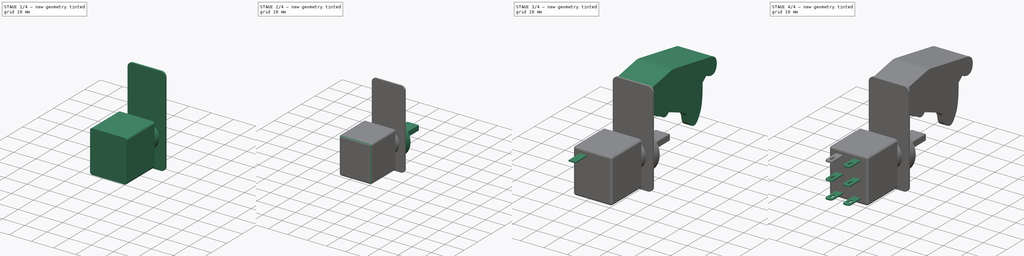
[diagram: build sequence overview — one tinted view per stage of 4, left to right]
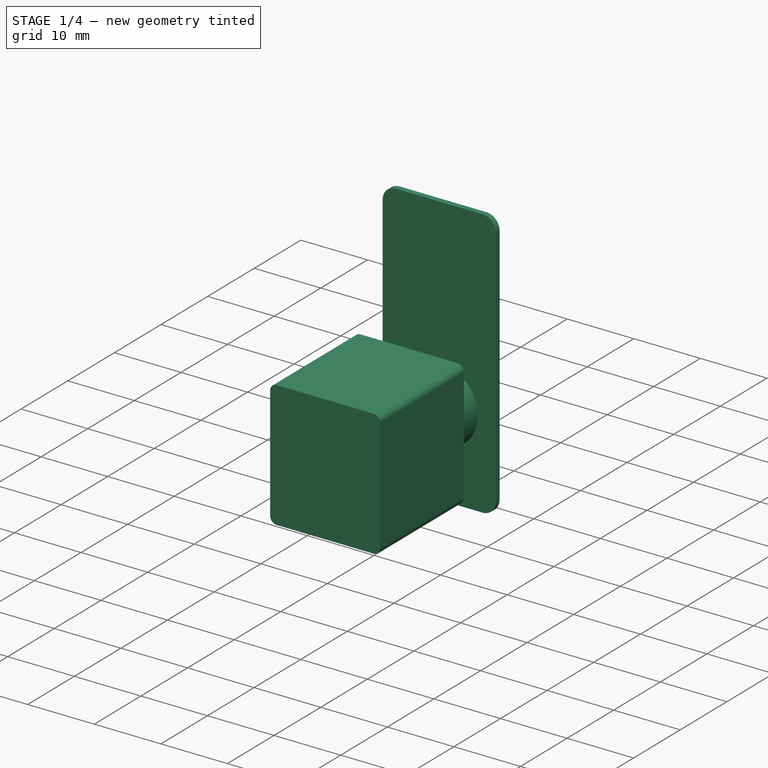
[diagram: stage 1 of 4 — iso view after this stage's code; geometry added in this stage tinted green]
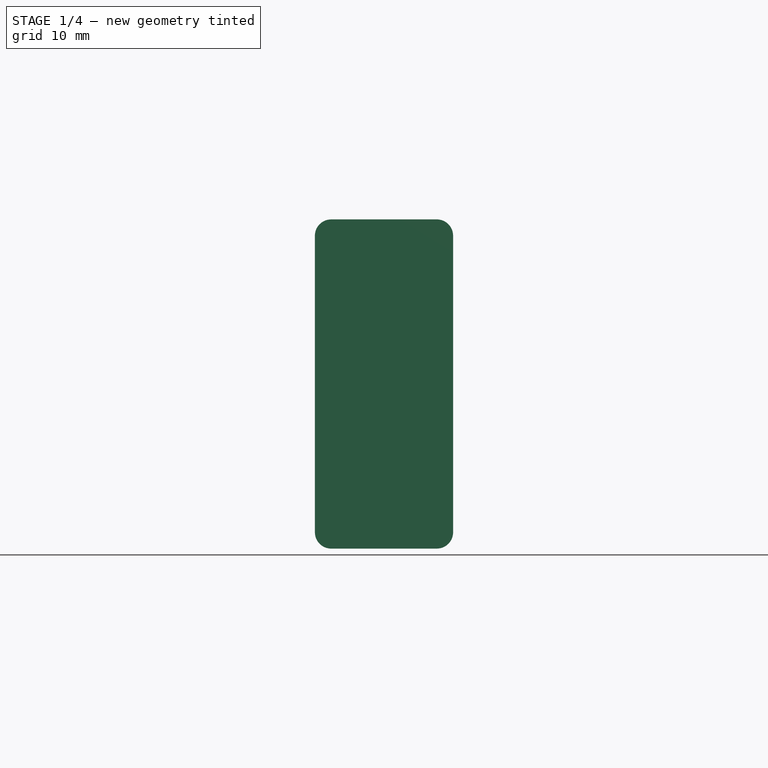
[diagram: stage 1 of 4 — front view after this stage's code; geometry added in this stage tinted green]
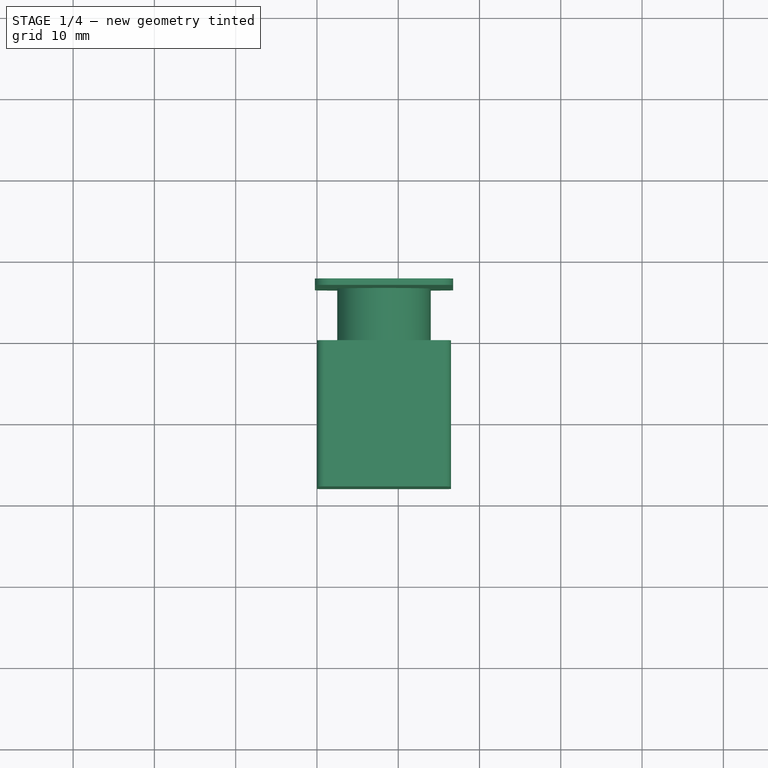
[diagram: stage 1 of 4 — top view after this stage's code; geometry added in this stage tinted green]
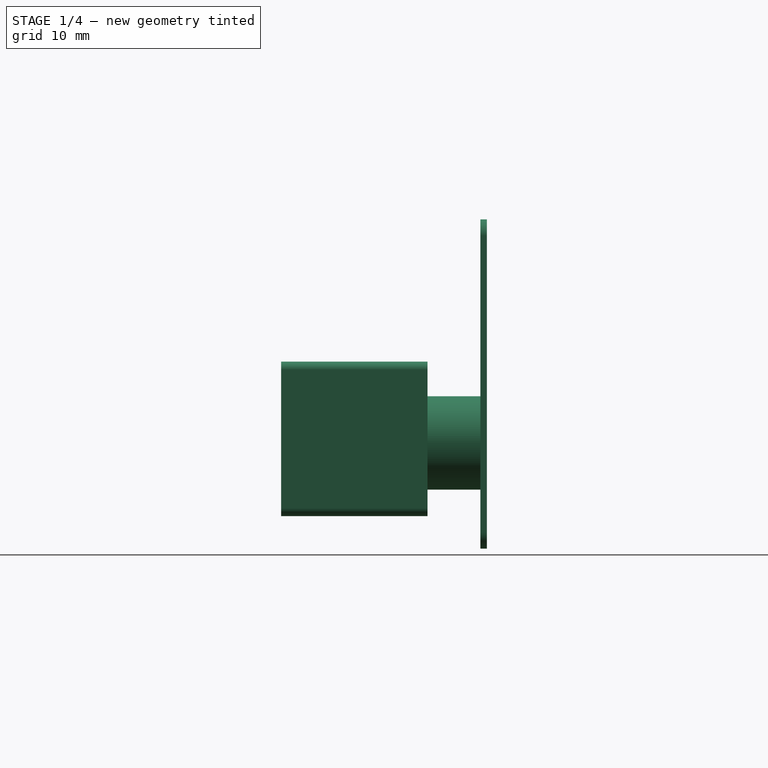
[diagram: stage 1 of 4 — right view after this stage's code; geometry added in this stage tinted green]
FCSTD DOCUMENT  (FreeCAD 1.0R39285 (Git))
Label: PreSwitch
License: All rights reserved
LicenseURL: https://en.wikipedia.org/wiki/All_rights_reserved
objects: Sketcher::SketchObject×9, PartDesign::Pad×7, PartDesign::Fillet×2, PartDesign::Pocket×2, PartDesign::LinearPattern×2, PartDesign::MultiTransform×1, PartDesign::Body×1
note: 58 computed .brp shape members not serialized (recipe doc carries the construction recipe); baked Part::Feature solids carry a one-line shape summary decoded from their .brp

FEATURE [Sketcher::SketchObject] Sketch
  ArcFitTolerance = 1e-06
  AttachmentSupport = -> [XZ_Plane]
  FullyConstrained = true
  MakeInternals = false
  MapMode = 5
  Placement = pos=(0,0,0) rot=(1,0,0;1.5708rad)
  sketch-geometry (12):
    g0: LineSegment StartX=1 StartY=0 StartZ=0 EndX=15.5 EndY=0 EndZ=0
    g1: LineSegment StartX=16.5 StartY=1 StartZ=0 EndX=16.5 EndY=18 EndZ=0
    g2: LineSegment StartX=15.5 StartY=19 StartZ=0 EndX=1 EndY=19 EndZ=0
    g3: LineSegment StartX=4e-16 StartY=18 StartZ=0 EndX=4e-16 EndY=1 EndZ=0
    g4: ArcOfCircle CenterX=1 CenterY=18 CenterZ=0 NormalX=0 NormalY=0 NormalZ=1 AngleXU=0 Radius=1 StartAngle=1.5708 EndAngle=3.14159
    g5: GeomPoint [constr] X=0 Y=19 Z=0
    g6: ArcOfCircle CenterX=15.5 CenterY=18 CenterZ=0 NormalX=0 NormalY=0 NormalZ=1 AngleXU=0 Radius=1 StartAngle=6.6e-15 EndAngle=1.5708
    g7: GeomPoint [constr] X=16.5 Y=19 Z=0
    g8: ArcOfCircle CenterX=15.5 CenterY=1 CenterZ=0 NormalX=0 NormalY=0 NormalZ=1 AngleXU=0 Radius=1 StartAngle=4.71239 EndAngle=6.28319
    g9: GeomPoint [constr] X=16.5 Y=0 Z=0
    g10: ArcOfCircle CenterX=1 CenterY=1 CenterZ=0 NormalX=0 NormalY=0 NormalZ=1 AngleXU=0 Radius=1 StartAngle=3.14159 EndAngle=4.71239
    g11: GeomPoint [constr] X=0 Y=0 Z=0
  constraints (27):
    c: Horizontal(g0)
    c: Horizontal(g2)
    c: Vertical(g1)
    c: Vertical(g3)
    c: Distance(g9,g11) = 16.5
    c: Distance(g11,g5) = 19
    c: Coincident(g11,g-1)
    c: PointOnObject(g5,g2)
    c: PointOnObject(g5,g3)
    c: Tangent(g2,g4) = -1.5708
    c: Tangent(g3,g4) = -1.5708
    c: PointOnObject(g7,g1)
    c: PointOnObject(g7,g2)
    c: Tangent(g1,g6) = -1.5708
    c: Tangent(g2,g6) = -1.5708
    c: PointOnObject(g9,g0)
    c: PointOnObject(g9,g1)
    c: Tangent(g0,g8) = -1.5708
    c: Tangent(g1,g8) = -1.5708
    c: PointOnObject(g11,g0)
    c: PointOnObject(g11,g3)
    c: Tangent(g0,g10) = -1.5708
    c: Tangent(g3,g10) = -1.5708
    c: Equal(g10,g8)
    c: Equal(g8,g6)
    c: Equal(g6,g4)
    c: Diameter(g10) = 2
FEATURE [PartDesign::Pad] Pad
  Direction = (0,-1,2e-16)
  Length = 18
  Length2 = 10
  Placement = pos=(0,0,0) rot=(1,0,0;1.5708rad)
  Profile = -> Sketch
  ReferenceAxis = -> Sketch [N_Axis]
  Refine = true
  Suppressed = false
  Type = 0
FEATURE [Sketcher::SketchObject] Sketch001
  ArcFitTolerance = 1e-06
  AttachmentSupport = -> [Pad]
  ExternalGeometry = -> [Pad]
  FullyConstrained = true
  MakeInternals = false
  MapMode = 5
  Placement = pos=(0,2.1e-15,0) rot=(-1,0,0;1.5708rad)
  sketch-geometry (1):
    g0: Circle CenterX=8.25 CenterY=-9 CenterZ=0 NormalX=0 NormalY=0 NormalZ=1 AngleXU=0 Radius=5.75
  constraints (2):
    c: Diameter(g0) = 11.5
    c: Symmetric(g-1,g-3,g0)
FEATURE [PartDesign::Pad] Pad001
  BaseFeature = -> Pad
  Direction = (0,1,2e-16)
  Length = 6.5
  Length2 = 10
  Placement = pos=(0,0,0) rot=(1,0,0;1.5708rad)
  Profile = -> Sketch001
  ReferenceAxis = -> Sketch001 [N_Axis]
  Refine = true
  Suppressed = false
  Type = 0
FEATURE [Sketcher::SketchObject] Sketch002
  ArcFitTolerance = 1e-06
  AttachmentSupport = -> [Pad001]
  ExternalGeometry = -> [Pad001]
  FullyConstrained = true
  MakeInternals = false
  MapMode = 5
  Placement = pos=(0,6.5,0) rot=(-1,0,0;1.5708rad)
  sketch-geometry (15):
    g0: LineSegment StartX=-0.25 StartY=2 StartZ=0 EndX=-0.25 EndY=-34.5 EndZ=0
    g1: LineSegment StartX=1.75 StartY=-36.5 StartZ=0 EndX=14.75 EndY=-36.5 EndZ=0
    g2: LineSegment StartX=16.75 StartY=-34.5 StartZ=0 EndX=16.75 EndY=2 EndZ=0
    g3: LineSegment StartX=14.75 StartY=4 StartZ=0 EndX=1.75 EndY=4 EndZ=0
    g4: GeomPoint X=8.25 Y=-0.5 Z=0
    g5: GeomPoint X=-0.25 Y=-1 Z=0
    g6: GeomPoint X=16.75 Y=0 Z=0
    g7: ArcOfCircle CenterX=1.75 CenterY=2 CenterZ=0 NormalX=0 NormalY=0 NormalZ=1 AngleXU=0 Radius=2 StartAngle=1.5708 EndAngle=3.14159
    g8: GeomPoint [constr] X=-0.25 Y=4 Z=0
    g9: ArcOfCircle CenterX=14.75 CenterY=2 CenterZ=0 NormalX=0 NormalY=0 NormalZ=1 AngleXU=0 Radius=2 StartAngle=0 EndAngle=1.5708
    g10: GeomPoint [constr] X=16.75 Y=4 Z=0
    g11: ArcOfCircle CenterX=14.75 CenterY=-34.5 CenterZ=0 NormalX=0 NormalY=0 NormalZ=1 AngleXU=0 Radius=2 StartAngle=4.71239 EndAngle=6.28319
    g12: GeomPoint [constr] X=16.75 Y=-36.5 Z=0
    g13: ArcOfCircle CenterX=1.75 CenterY=-34.5 CenterZ=0 NormalX=0 NormalY=0 NormalZ=1 AngleXU=0 Radius=2 StartAngle=3.14159 EndAngle=4.71239
    g14: GeomPoint [constr] X=-0.25 Y=-36.5 Z=0
  constraints (32):
    c: Vertical(g0)
    c: Vertical(g2)
    c: Horizontal(g1)
    c: Horizontal(g3)
    c: Distance(g8,g10) = 17
    c: Distance(g14,g8) = 40.5
    c: DistanceY(g-1,g8) = 4
    c: PointOnObject(g5,g0)
    c: PointOnObject(g6,g2)
    c: PointOnObject(g6,g-1)
    c: Symmetric(g5,g6,g4)
    c: Symmetric(g-1,g-3,g4)
    c: PointOnObject(g8,g0)
    c: PointOnObject(g8,g3)
    c: Tangent(g0,g7) = -1.5708
    c: Tangent(g3,g7) = -1.5708
    c: PointOnObject(g10,g2)
    c: PointOnObject(g10,g3)
    c: Tangent(g2,g9) = -1.5708
    c: Tangent(g3,g9) = -1.5708
    c: PointOnObject(g12,g1)
    c: PointOnObject(g12,g2)
    c: Tangent(g1,g11) = -1.5708
    c: Tangent(g2,g11) = -1.5708
    c: PointOnObject(g14,g0)
    c: PointOnObject(g14,g1)
    c: Tangent(g0,g13) = -1.5708
    c: Tangent(g1,g13) = -1.5708
    c: Equal(g13,g11)
    c: Equal(g11,g7)
    c: Equal(g7,g9)
    c: Diameter(g7) = 4
FEATURE [PartDesign::Pad] Pad002
  BaseFeature = -> Pad001
  Direction = (0,1,2e-16)
  Length = 0.8
  Length2 = 10
  Placement = pos=(0,0,0) rot=(1,0,0;1.5708rad)
  Profile = -> Sketch002
  ReferenceAxis = -> Sketch002 [N_Axis]
  Refine = true
  Suppressed = false
  Type = 0
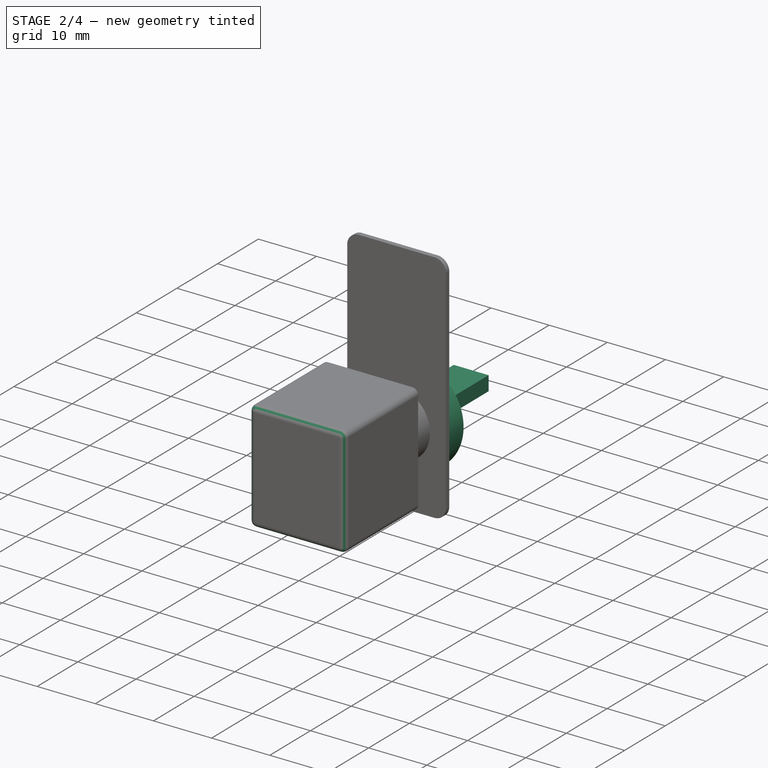
[diagram: stage 2 of 4 — iso view after this stage's code; geometry added in this stage tinted green]
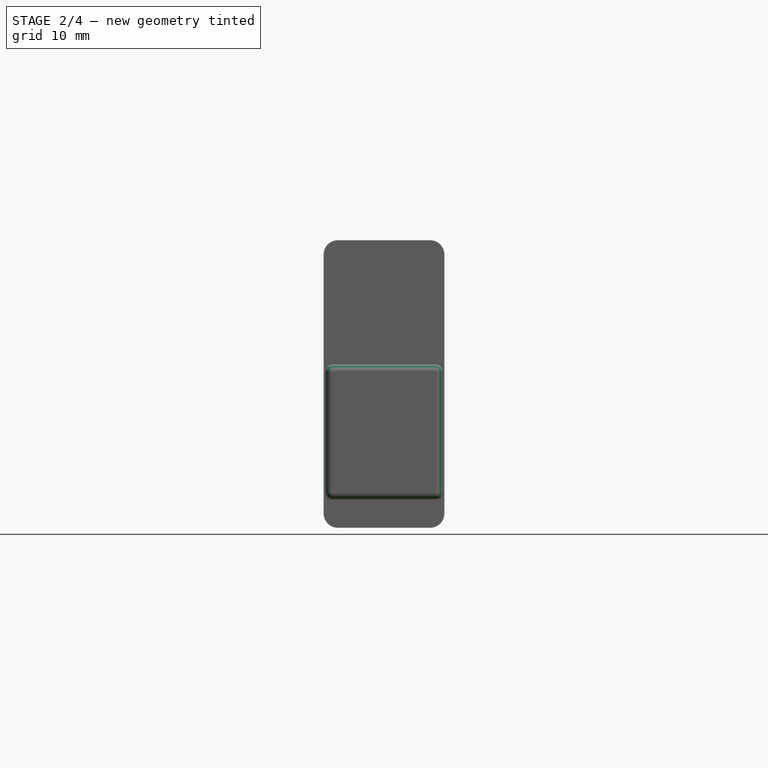
[diagram: stage 2 of 4 — front view after this stage's code; geometry added in this stage tinted green]
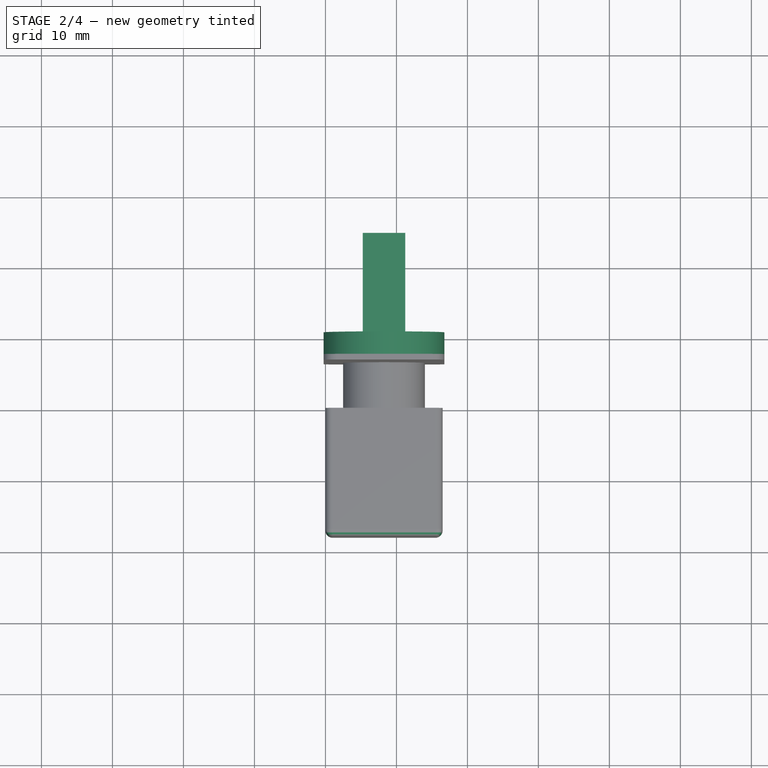
[diagram: stage 2 of 4 — top view after this stage's code; geometry added in this stage tinted green]
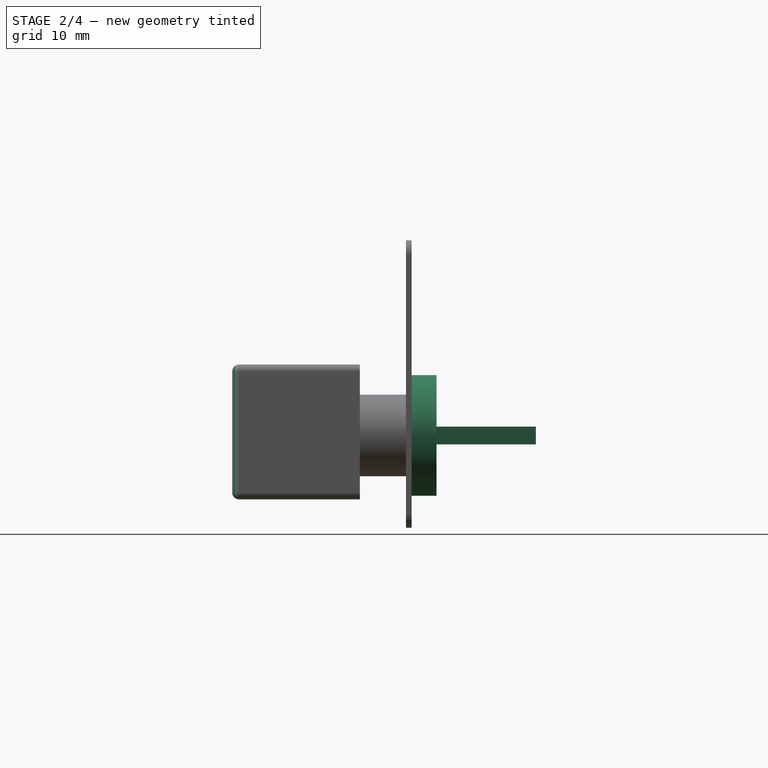
[diagram: stage 2 of 4 — right view after this stage's code; geometry added in this stage tinted green]
FEATURE [PartDesign::Fillet] Fillet
  Base = -> Pad002 [Edge17,Edge19,Edge21,Edge4]
  BaseFeature = -> Pad002
  Placement = pos=(0,0,0) rot=(1,0,0;1.5708rad)
  Radius = 1
  Refine = true
  SupportTransform = false
  Suppressed = false
  UseAllEdges = false
FEATURE [Sketcher::SketchObject] Sketch003
  ArcFitTolerance = 1e-06
  AttachmentSupport = -> [Fillet]
  ExternalGeometry = -> [Fillet]
  FullyConstrained = false
  MakeInternals = false
  MapMode = 5
  Placement = pos=(0,7.3,0) rot=(-1,0,0;1.5708rad)
  sketch-geometry (2):
    g0: GeomPoint X=8.25 Y=-9 Z=0
    g1: Circle CenterX=8.25 CenterY=-9 CenterZ=0 NormalX=0 NormalY=0 NormalZ=1 AngleXU=0 Radius=8.5
  constraints (2):
    c: Diameter(g1) = 17
    c: Coincident(g1,g0)
FEATURE [PartDesign::Pad] Pad003
  BaseFeature = -> Fillet
  Direction = (0,1,2e-16)
  Length = 3.5
  Length2 = 10
  Placement = pos=(0,0,0) rot=(1,0,0;1.5708rad)
  Profile = -> Sketch003
  ReferenceAxis = -> Sketch003 [N_Axis]
  Refine = true
  Suppressed = false
  Type = 0
FEATURE [Sketcher::SketchObject] Sketch004
  ArcFitTolerance = 1e-06
  AttachmentSupport = -> [Pad003]
  ExternalGeometry = -> [Pad003]
  FullyConstrained = true
  MakeInternals = false
  MapMode = 5
  Placement = pos=(0,10.8,2.6e-15) rot=(-1,0,0;1.5708rad)
  sketch-geometry (4):
    g0: LineSegment StartX=5.25 StartY=-7.75 StartZ=0 EndX=5.25 EndY=-10.25 EndZ=0
    g1: LineSegment StartX=5.25 StartY=-10.25 StartZ=0 EndX=11.25 EndY=-10.25 EndZ=0
    g2: LineSegment StartX=11.25 StartY=-10.25 StartZ=0 EndX=11.25 EndY=-7.75 EndZ=0
    g3: LineSegment StartX=11.25 StartY=-7.75 StartZ=0 EndX=5.25 EndY=-7.75 EndZ=0
  constraints (11):
    c: Coincident(g0,g1)
    c: Coincident(g1,g2)
    c: Coincident(g2,g3)
    c: Coincident(g3,g0)
    c: Vertical(g0)
    c: Vertical(g2)
    c: Horizontal(g1)
    c: Horizontal(g3)
    c: Distance(g0,g2) = 6
    c: Distance(g1,g3) = 2.5
    c: Symmetric(g0,g1,g-3)
FEATURE [PartDesign::Pad] Pad004
  BaseFeature = -> Pad003
  Direction = (0,1,2e-16)
  Length = 14
  Length2 = 10
  Placement = pos=(0,0,0) rot=(1,0,0;1.5708rad)
  Profile = -> Sketch004
  ReferenceAxis = -> Sketch004 [N_Axis]
  Refine = true
  Suppressed = false
  Type = 0
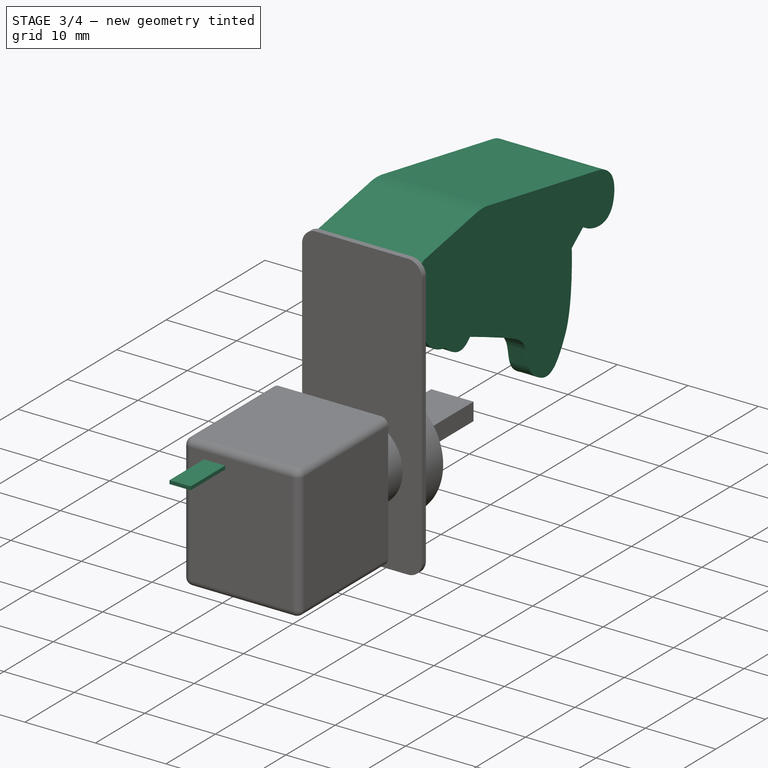
[diagram: stage 3 of 4 — iso view after this stage's code; geometry added in this stage tinted green]
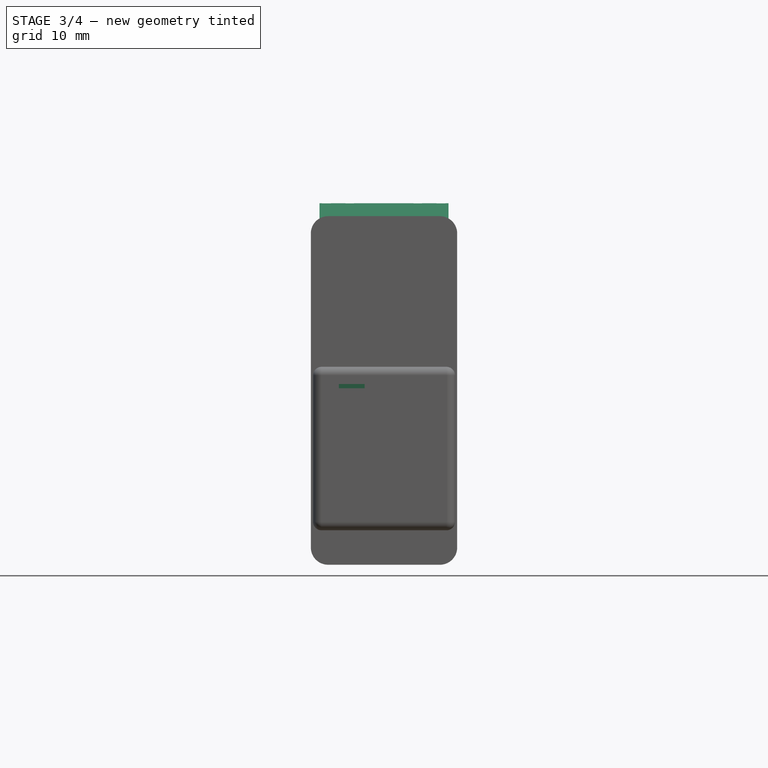
[diagram: stage 3 of 4 — front view after this stage's code; geometry added in this stage tinted green]
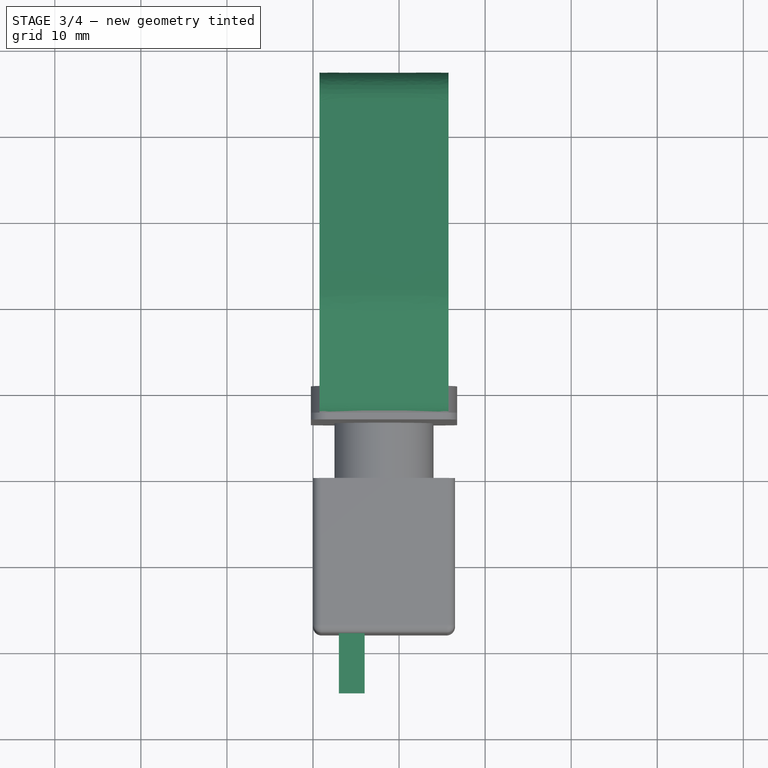
[diagram: stage 3 of 4 — top view after this stage's code; geometry added in this stage tinted green]
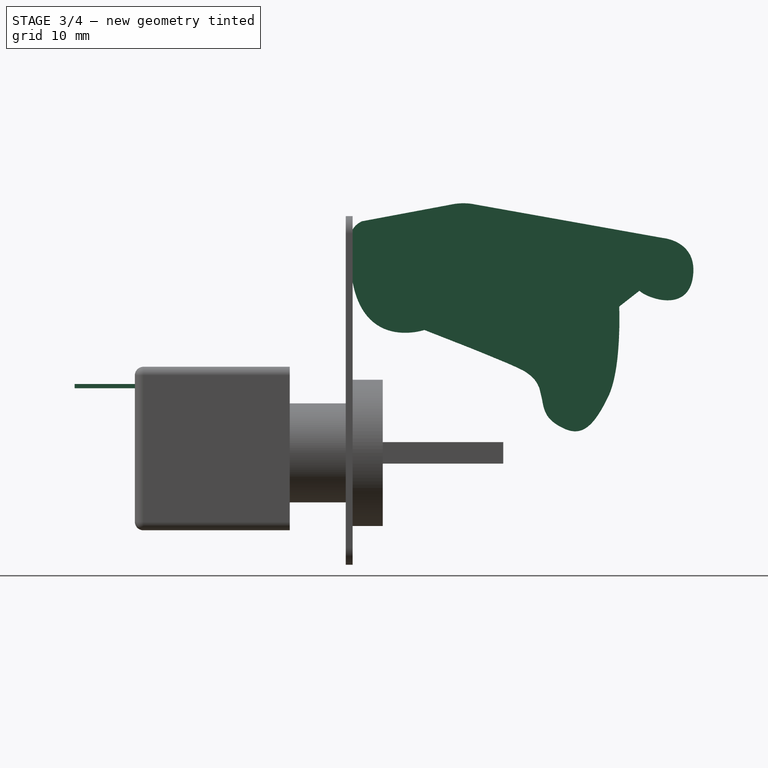
[diagram: stage 3 of 4 — right view after this stage's code; geometry added in this stage tinted green]
FEATURE [Sketcher::SketchObject] Sketch005
  ArcFitTolerance = 1e-06
  FullyConstrained = false
  MakeInternals = false
  Placement = pos=(15.75,7,38) rot=(0.57735,0.57735,0.57735;2.0944rad)
  sketch-geometry (14):
    g0: BSplineCurve PolesCount=2 KnotsCount=2 Degree=1 IsPeriodic=0
    g1: BSplineCurve PolesCount=4 KnotsCount=2 Degree=3 IsPeriodic=0
    g2: BSplineCurve PolesCount=4 KnotsCount=2 Degree=3 IsPeriodic=0
    g3: BSplineCurve PolesCount=4 KnotsCount=2 Degree=3 IsPeriodic=0
    g4: BSplineCurve PolesCount=4 KnotsCount=2 Degree=3 IsPeriodic=0
    g5: BSplineCurve PolesCount=2 KnotsCount=2 Degree=1 IsPeriodic=0
    g6: BSplineCurve PolesCount=4 KnotsCount=2 Degree=3 IsPeriodic=0
    g7: BSplineCurve PolesCount=4 KnotsCount=2 Degree=3 IsPeriodic=0
    g8: BSplineCurve PolesCount=4 KnotsCount=2 Degree=3 IsPeriodic=0
    g9: BSplineCurve PolesCount=4 KnotsCount=2 Degree=3 IsPeriodic=0
    g10: BSplineCurve PolesCount=4 KnotsCount=2 Degree=3 IsPeriodic=0
    g11: BSplineCurve PolesCount=4 KnotsCount=2 Degree=3 IsPeriodic=0
    g12: BSplineCurve PolesCount=2 KnotsCount=2 Degree=1 IsPeriodic=0
    g13: BSplineCurve PolesCount=4 KnotsCount=2 Degree=3 IsPeriodic=0
  constraints (14):
    c: Coincident(g0,g1)
    c: Coincident(g1,g2)
    c: Coincident(g2,g3)
    c: Coincident(g3,g4)
    c: Coincident(g4,g5)
    c: Coincident(g5,g6)
    c: Coincident(g6,g7)
    c: Coincident(g7,g8)
    c: Coincident(g8,g9)
    c: Coincident(g9,g10)
    c: Coincident(g10,g11)
    c: Coincident(g11,g12)
    c: Coincident(g12,g13)
    c: Coincident(g13,g0)
FEATURE [PartDesign::Pad] Pad005
  BaseFeature = -> Pad004
  Direction = (1,-3e-16,3e-16)
  Length = 15
  Length2 = 10
  Placement = pos=(0,0,0) rot=(1,0,0;1.5708rad)
  Profile = -> Sketch005
  ReferenceAxis = -> Sketch005 [N_Axis]
  Refine = true
  Reversed = true
  Suppressed = false
  Type = 0
FEATURE [Sketcher::SketchObject] Sketch006
  ArcFitTolerance = 1e-06
  AttachmentOffset = pos=(0,0,11) rot=(0,0,1;0rad)
  AttachmentSupport = -> [XY_Plane]
  ExternalGeometry = -> [Pad005]
  FullyConstrained = true
  MakeInternals = false
  MapMode = 5
  Placement = pos=(0,0,11) rot=(0,0,1;0rad)
  sketch-geometry (7):
    g0: LineSegment StartX=13 StartY=15.6392 StartZ=0 EndX=13 EndY=40.6392 EndZ=0
    g1: LineSegment StartX=13 StartY=40.6392 StartZ=0 EndX=3.5 EndY=40.6392 EndZ=0
    g2: LineSegment StartX=3.5 StartY=40.6392 StartZ=0 EndX=3.5 EndY=15.6392 EndZ=0
    g3: LineSegment StartX=3.5 StartY=15.6392 StartZ=0 EndX=13 EndY=15.6392 EndZ=0
    g4: LineSegment [constr] StartX=15.75 StartY=15.6392 StartZ=0 EndX=0.75 EndY=15.6392 EndZ=0
    g5: GeomPoint [constr] X=8.25 Y=15.6392 Z=0
    g6: GeomPoint [constr] X=8.25 Y=15.6392 Z=0
  constraints (15):
    c: Coincident(g0,g1)
    c: Coincident(g1,g2)
    c: Coincident(g2,g3)
    c: Coincident(g3,g0)
    c: Vertical(g0)
    c: Vertical(g2)
    c: Horizontal(g1)
    c: Horizontal(g3)
    c: Distance(g0,g2) = 9.5
    c: Distance(g1,g3) = 25
    c: Coincident(g4,g-3)
    c: Coincident(g4,g-4)
    c: Symmetric(g3,g3,g5)
    c: Symmetric(g4,g4,g6)
    c: Coincident(g5,g6)
FEATURE [PartDesign::Pocket] Pocket
  BaseFeature = -> Pad005
  Direction = (0,0,-1)
  Length = 20
  Length2 = 5
  Placement = pos=(0,0,0) rot=(1,0,0;1.5708rad)
  Profile = -> Sketch006
  ReferenceAxis = -> Sketch006 [N_Axis]
  Refine = true
  Reversed = true
  Suppressed = false
  Type = 0
FEATURE [Sketcher::SketchObject] Sketch007
  ArcFitTolerance = 1e-06
  AttachmentSupport = -> [Pocket]
  ExternalGeometry = -> [Pocket]
  FullyConstrained = true
  MakeInternals = false
  MapMode = 5
  Placement = pos=(0,-18,0) rot=(1,0,0;1.5708rad)
  sketch-geometry (4):
    g0: LineSegment StartX=3 StartY=17 StartZ=0 EndX=3 EndY=16.5 EndZ=0
    g1: LineSegment StartX=3 StartY=16.5 StartZ=0 EndX=6 EndY=16.5 EndZ=0
    g2: LineSegment StartX=6 StartY=16.5 StartZ=0 EndX=6 EndY=17 EndZ=0
    g3: LineSegment StartX=6 StartY=17 StartZ=0 EndX=3 EndY=17 EndZ=0
  constraints (12):
    c: Coincident(g0,g1)
    c: Coincident(g1,g2)
    c: Coincident(g2,g3)
    c: Coincident(g3,g0)
    c: Vertical(g0)
    c: Vertical(g2)
    c: Horizontal(g1)
    c: Horizontal(g3)
    c: Distance(g0,g2) = 3
    c: Distance(g1,g3) = 0.5
    c: DistanceY(g0,g-4) = 2
    c: DistanceX(g-3,g0) = 3
FEATURE [PartDesign::Pad] Pad006
  BaseFeature = -> Pocket
  Direction = (0,-1,2e-16)
  Length = 7
  Length2 = 10
  Placement = pos=(0,0,0) rot=(1,0,0;1.5708rad)
  Profile = -> Sketch007
  ReferenceAxis = -> Sketch007 [N_Axis]
  Refine = true
  Suppressed = false
  Type = 0
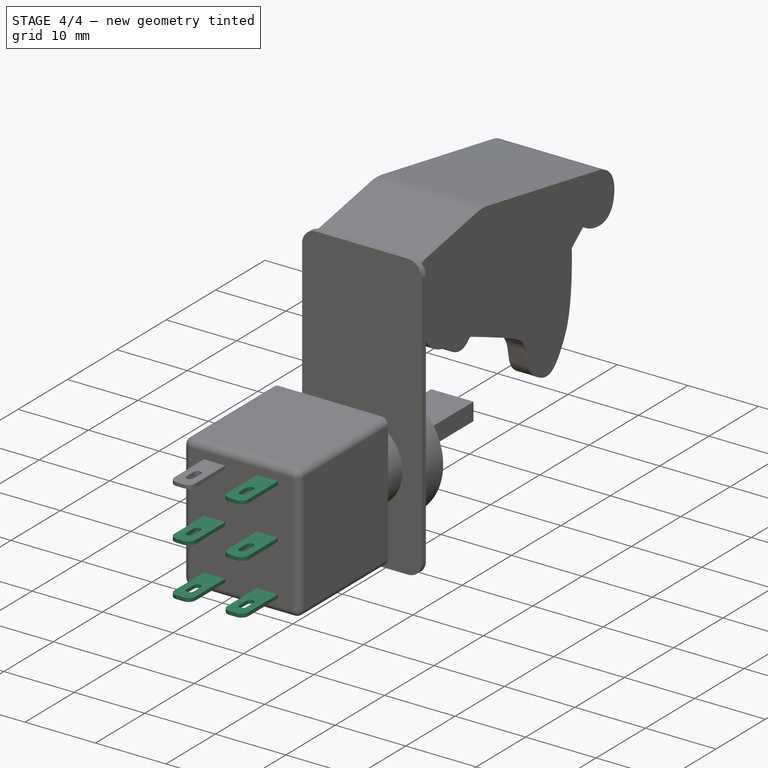
[diagram: stage 4 of 4 — iso view after this stage's code; geometry added in this stage tinted green]
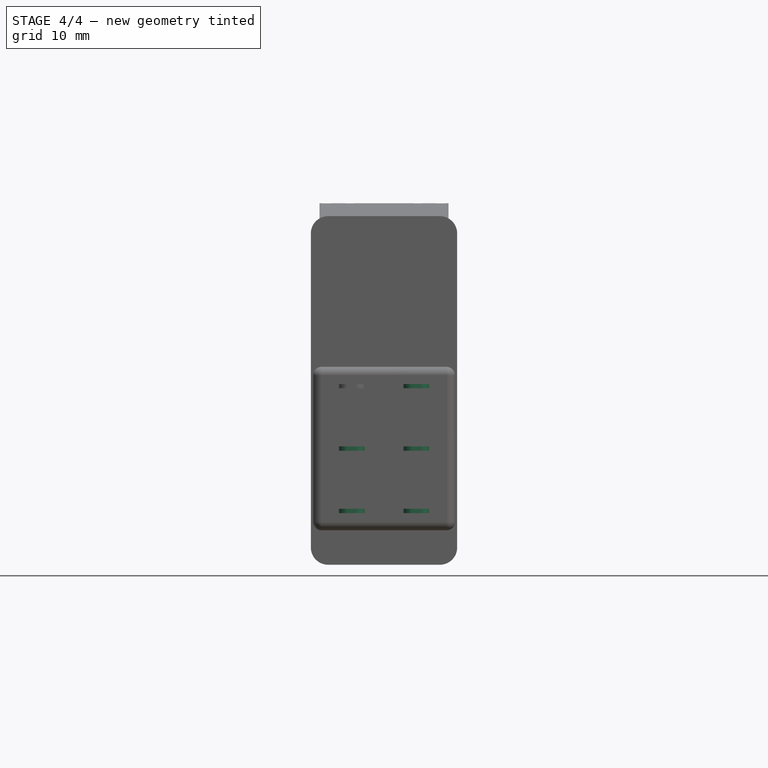
[diagram: stage 4 of 4 — front view after this stage's code; geometry added in this stage tinted green]
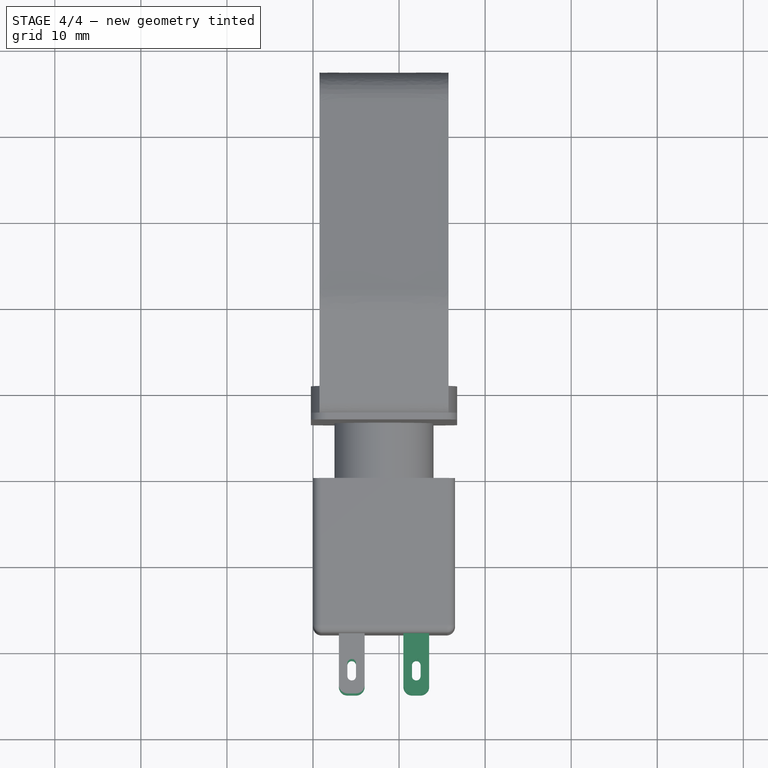
[diagram: stage 4 of 4 — top view after this stage's code; geometry added in this stage tinted green]
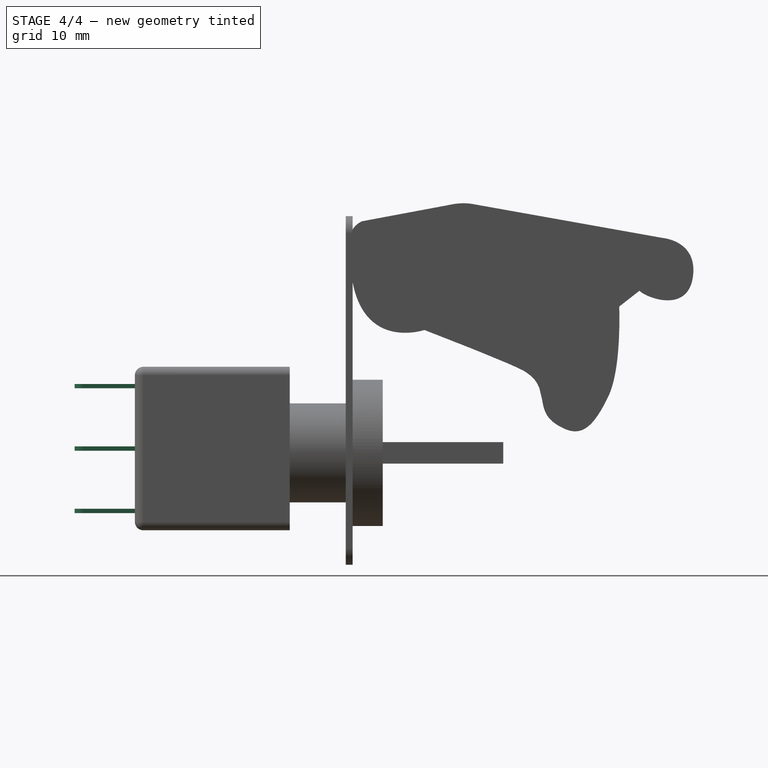
[diagram: stage 4 of 4 — right view after this stage's code; geometry added in this stage tinted green]
FEATURE [Sketcher::SketchObject] Sketch008
  ArcFitTolerance = 1e-06
  AttachmentSupport = -> [Pad006]
  ExternalGeometry = -> [Pad006]
  FullyConstrained = true
  MakeInternals = false
  MapMode = 5
  Placement = pos=(0,3.8e-15,17) rot=(0,0,1;3.14159rad)
  sketch-geometry (6):
    g0: ArcOfCircle CenterX=-4.5 CenterY=23 CenterZ=0 NormalX=0 NormalY=0 NormalZ=1 AngleXU=0 Radius=0.5 StartAngle=-2.7e-15 EndAngle=3.14159
    g1: ArcOfCircle CenterX=-4.5 CenterY=21.5 CenterZ=0 NormalX=0 NormalY=0 NormalZ=1 AngleXU=0 Radius=0.5 StartAngle=3.14159 EndAngle=6.28319
    g2: LineSegment StartX=-4 StartY=23 StartZ=0 EndX=-4 EndY=21.5 EndZ=0
    g3: LineSegment StartX=-5 StartY=23 StartZ=0 EndX=-5 EndY=21.5 EndZ=0
    g4: GeomPoint X=-6 Y=23 Z=0
    g5: GeomPoint X=-3 Y=23 Z=0
  constraints (13):
    c: Tangent(g0,g2) = 1.5708
    c: Tangent(g0,g3) = -1.5708
    c: Tangent(g1,g2) = 1.5708
    c: Tangent(g1,g3) = -1.5708
    c: Equal(g0,g1)
    c: Vertical(g2)
    c: DistanceX(g1,g1) = 1
    c: PointOnObject(g4,g-3)
    c: PointOnObject(g5,g-4)
    c: Horizontal(g4,g0)
    c: Symmetric(g4,g5,g0)
    c: DistanceY(g1,g0) = 1.5
    c: DistanceY(g0,g-4) = 2
FEATURE [PartDesign::Fillet] Fillet001
  Base = -> Pad006 [Edge53,Edge50]
  BaseFeature = -> Pad006
  Placement = pos=(0,0,0) rot=(1,0,0;1.5708rad)
  Radius = 1
  Refine = true
  SupportTransform = false
  Suppressed = false
  UseAllEdges = false
FEATURE [PartDesign::Pocket] Pocket001
  BaseFeature = -> Fillet001
  Direction = (0,0,-1)
  Length = 5
  Length2 = 5
  Placement = pos=(0,0,0) rot=(1,0,0;1.5708rad)
  Profile = -> Sketch008
  ReferenceAxis = -> Sketch008 [N_Axis]
  Refine = true
  Suppressed = false
  Type = 1
FEATURE [PartDesign::LinearPattern] LinearPattern
  Direction = -> Sketch007 [H_Axis]
  Length = 7.5
  Mode = 0
  Occurrences = 2
  Offset = 7.5
  Placement = pos=(0,0,0) rot=(1,0,0;1.5708rad)
  Refine = true
  Suppressed = false
  TransformMode = 0
FEATURE [PartDesign::LinearPattern] LinearPattern001
  Direction = -> Sketch007 [V_Axis]
  Length = 14.5
  Mode = 0
  Occurrences = 3
  Offset = 7.25
  Placement = pos=(0,0,0) rot=(1,0,0;1.5708rad)
  Refine = true
  Reversed = true
  Suppressed = false
  TransformMode = 0
FEATURE [PartDesign::MultiTransform] MultiTransform
  BaseFeature = -> Pocket001
  Originals = -> [Pad006,Fillet001,Pocket001]
  Placement = pos=(0,0,0) rot=(1,0,0;1.5708rad)
  Refine = true
  Suppressed = false
  TransformMode = 0
  Transformations = -> [LinearPattern,LinearPattern001]
FEATURE [PartDesign::Body] Body  label="Körper"
  AllowCompound = false
  Group = -> [Sketch,Pad,Sketch001,Pad001,Sketch002,Pad002,Fillet,Sketch003,Pad003,Sketch004,Pad004,Sketch005,Pad005,Sketch006,Pocket,Sketch007,Pad006,Sketch008,Fillet001,Pocket001,MultiTransform,LinearPattern,LinearPattern001]
  Origin = -> Origin
  Tip = -> MultiTransform
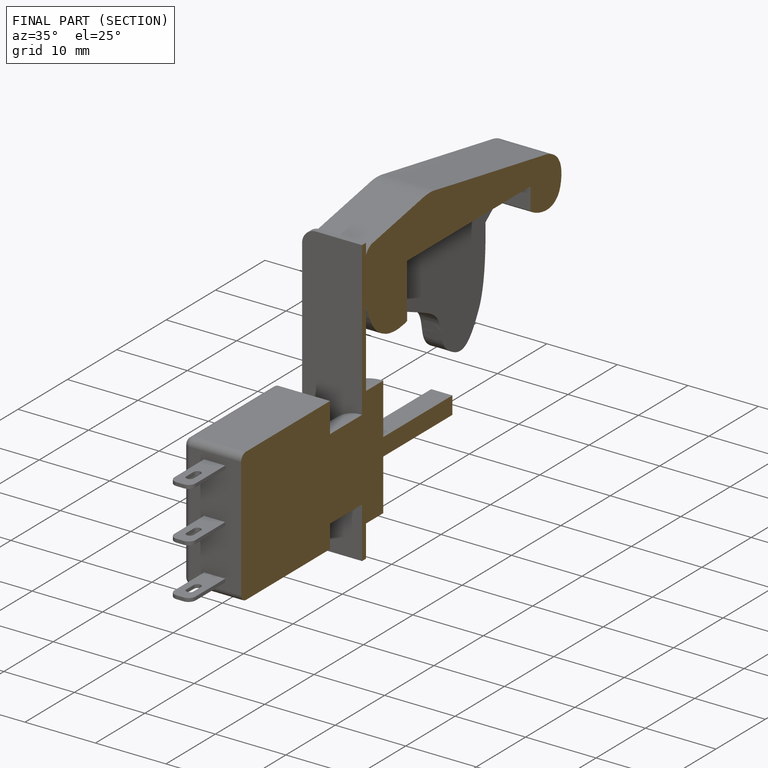
[diagram: finished part — half-section view (interior)]
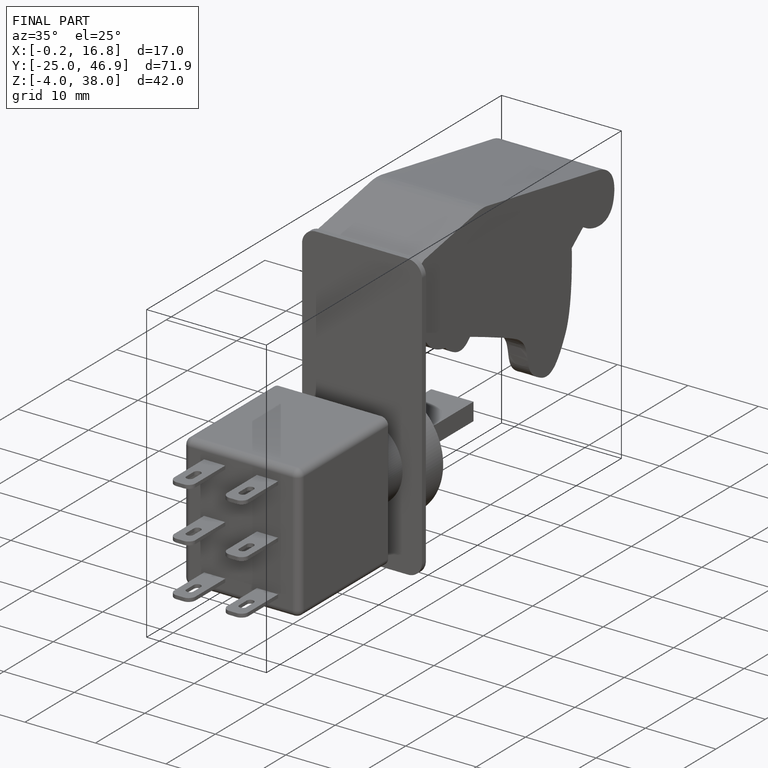
[diagram: finished part — iso view with bounding-box wireframe]
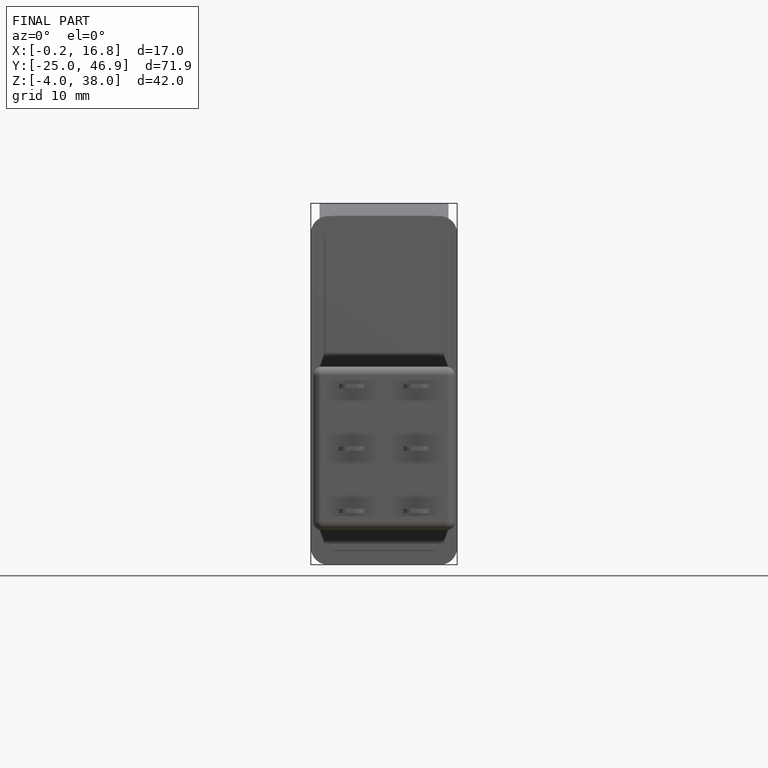
[diagram: finished part — front view with bounding-box wireframe]
